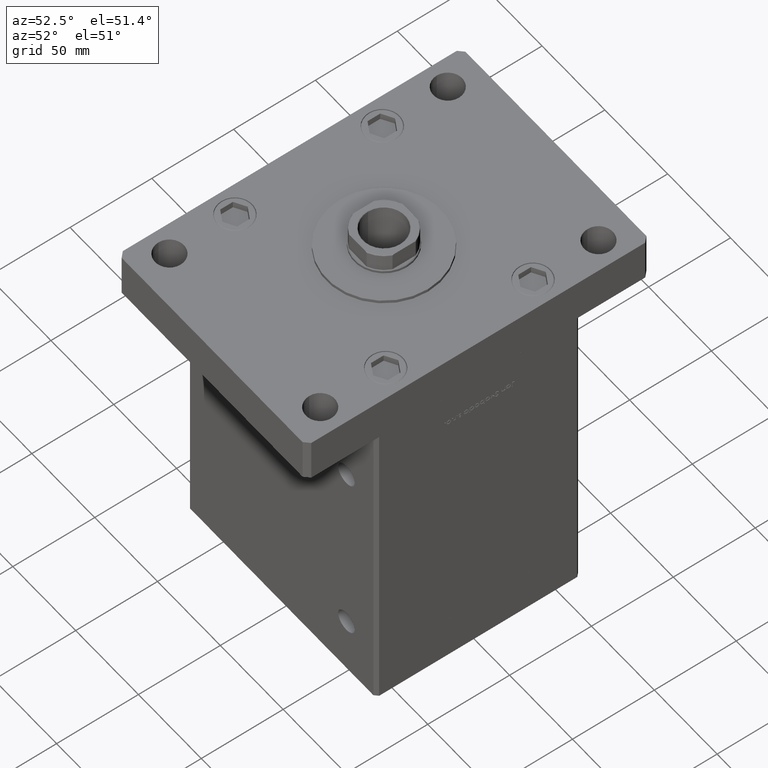
[diagram: clean part render]
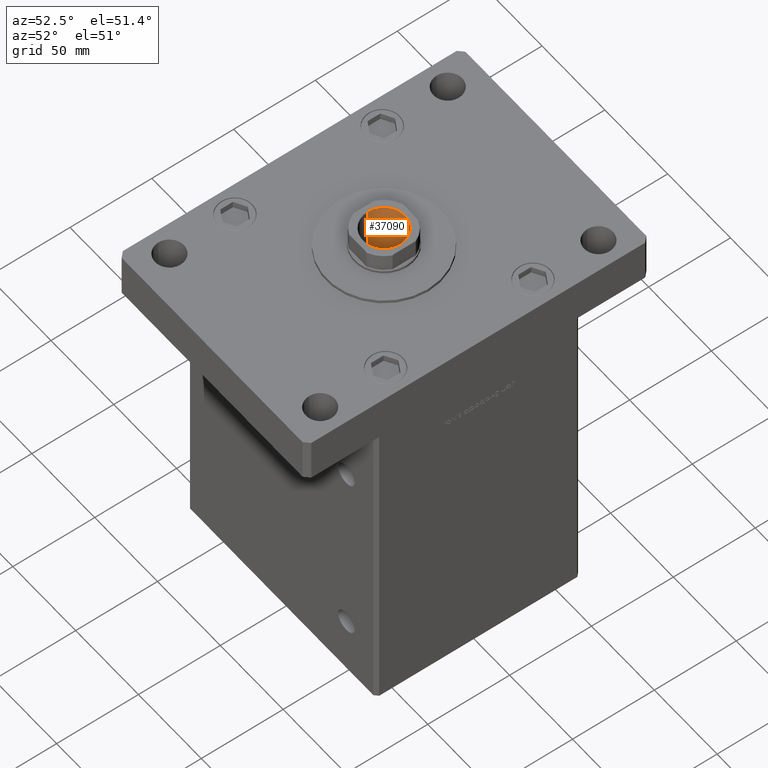
[diagram: same view with one face highlighted and labeled with its STEP entity id]
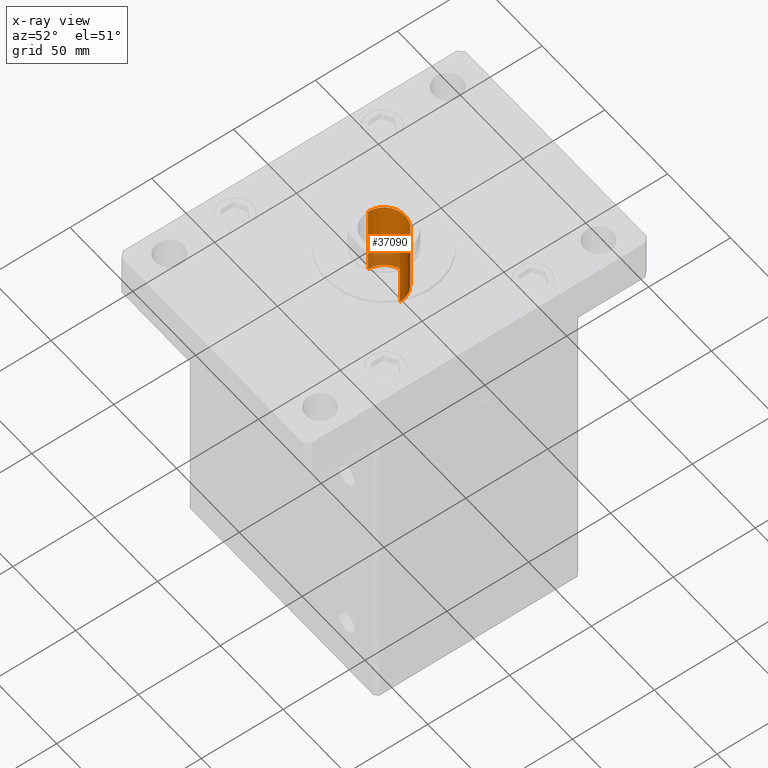
[diagram: x-ray of the same camera — body ghosted, the highlighted face saturated]
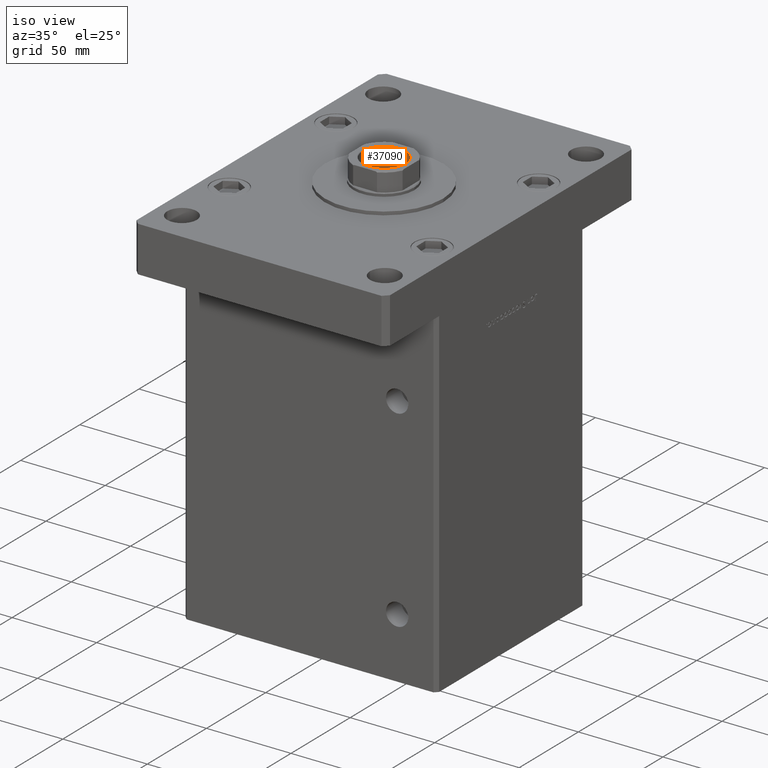
[diagram: same view with one face highlighted and labeled with its STEP entity id]
A machine part, auxiliary view. The second image highlights one B-rep face of the part: STEP entity #37090.
The next image is the same camera in x-ray: the body ghosted, the highlighted face saturated — about 19% of this face is hidden behind the body in this view.
A second angle (iso view) of the same face is appended — the face is thin or edge-on in the first view.
In plain terms, the highlighted cylindrical surface (edge-blend (fillet) strip) has radius 12.75 mm, axis along (0, 0, 1).
Its self-contained STEP definition (entity closure, byte-faithful):
#287 = CARTESIAN_POINT ( 'NONE',  ( 0.000000000000000000, 0.000000000000000000, 164.5000000000000284 ) ) ;
#4348 = DIRECTION ( 'NONE',  ( -0.000000000000000000, -0.000000000000000000, 1.000000000000000000 ) ) ;
#5268 = ORIENTED_EDGE ( 'NONE', *, *, #30303, .T. ) ;
#5619 = LINE ( 'NONE', #42709, #24465 ) ;
#7028 = CARTESIAN_POINT ( 'NONE',  ( 0.000000000000000000, 0.000000000000000000, 209.5000000000000284 ) ) ;
#7472 = ORIENTED_EDGE ( 'NONE', *, *, #50307, .F. ) ;
#8889 = VERTEX_POINT ( 'NONE', #26316 ) ;
#9354 = CIRCLE ( 'NONE', #37021, 12.74999999999999467 ) ;
#9939 = DIRECTION ( 'NONE',  ( -0.000000000000000000, -0.000000000000000000, 1.000000000000000000 ) ) ;
#10169 = VERTEX_POINT ( 'NONE', #34145 ) ;
#10393 = LINE ( 'NONE', #18784, #18777 ) ;
#10574 = DIRECTION ( 'NONE',  ( 0.000000000000000000, 0.000000000000000000, 1.000000000000000000 ) ) ;
#18777 = VECTOR ( 'NONE', #35287, 1000.000000000000000 ) ;
#18784 = CARTESIAN_POINT ( 'NONE',  ( -12.74999999999999467, 1.561424668912874519E-15, 209.5000000000000284 ) ) ;
#19486 = FACE_OUTER_BOUND ( 'NONE', #53009, .T. ) ;
#19817 = CARTESIAN_POINT ( 'NONE',  ( -12.74999999999999112, 1.561424668912874125E-15, 164.5000000000000284 ) ) ;
#20425 = VERTEX_POINT ( 'NONE', #47134 ) ;
#20870 = DIRECTION ( 'NONE',  ( 1.000000000000000000, 0.000000000000000000, 0.000000000000000000 ) ) ;
#24465 = VECTOR ( 'NONE', #9939, 1000.000000000000000 ) ;
#26316 = CARTESIAN_POINT ( 'NONE',  ( 12.74999999999999467, 0.000000000000000000, 209.1999999999999886 ) ) ;
#28925 = CYLINDRICAL_SURFACE ( 'NONE', #50500, 12.74999999999999467 ) ;
#30303 = EDGE_CURVE ( 'NONE', #20425, #8889, #5619, .T. ) ;
#30872 = CARTESIAN_POINT ( 'NONE',  ( 0.000000000000000000, 0.000000000000000000, 209.1999999999999886 ) ) ;
#31925 = DIRECTION ( 'NONE',  ( 1.000000000000000000, 0.000000000000000000, 0.000000000000000000 ) ) ;
#31942 = VERTEX_POINT ( 'NONE', #19817 ) ;
#33813 = ORIENTED_EDGE ( 'NONE', *, *, #35360, .F. ) ;
#34145 = CARTESIAN_POINT ( 'NONE',  ( -12.74999999999999467, 1.561424668912874519E-15, 209.1999999999999886 ) ) ;
#35287 = DIRECTION ( 'NONE',  ( -0.000000000000000000, -0.000000000000000000, 1.000000000000000000 ) ) ;
#35360 = EDGE_CURVE ( 'NONE', #20425, #31942, #40159, .T. ) ;
#35998 = DIRECTION ( 'NONE',  ( -0.000000000000000000, -0.000000000000000000, 1.000000000000000000 ) ) ;
#37021 = AXIS2_PLACEMENT_3D ( 'NONE', #30872, #10574, #39543 ) ;
#37090 = ADVANCED_FACE ( 'NONE', ( #19486 ), #28925, .F. ) ;
#37292 = ORIENTED_EDGE ( 'NONE', *, *, #53325, .T. ) ;
#39543 = DIRECTION ( 'NONE',  ( 1.000000000000000000, 0.000000000000000000, 0.000000000000000000 ) ) ;
#40159 = CIRCLE ( 'NONE', #47100, 12.74999999999999112 ) ;
#42709 = CARTESIAN_POINT ( 'NONE',  ( 12.74999999999999467, 0.000000000000000000, 209.5000000000000284 ) ) ;
#47100 = AXIS2_PLACEMENT_3D ( 'NONE', #287, #4348, #20870 ) ;
#47134 = CARTESIAN_POINT ( 'NONE',  ( 12.74999999999999112, 0.000000000000000000, 164.5000000000000284 ) ) ;
#50307 = EDGE_CURVE ( 'NONE', #31942, #10169, #10393, .T. ) ;
#50500 = AXIS2_PLACEMENT_3D ( 'NONE', #7028, #35998, #31925 ) ;
#53009 = EDGE_LOOP ( 'NONE', ( #7472, #33813, #5268, #37292 ) ) ;
#53325 = EDGE_CURVE ( 'NONE', #8889, #10169, #9354, .T. ) ;